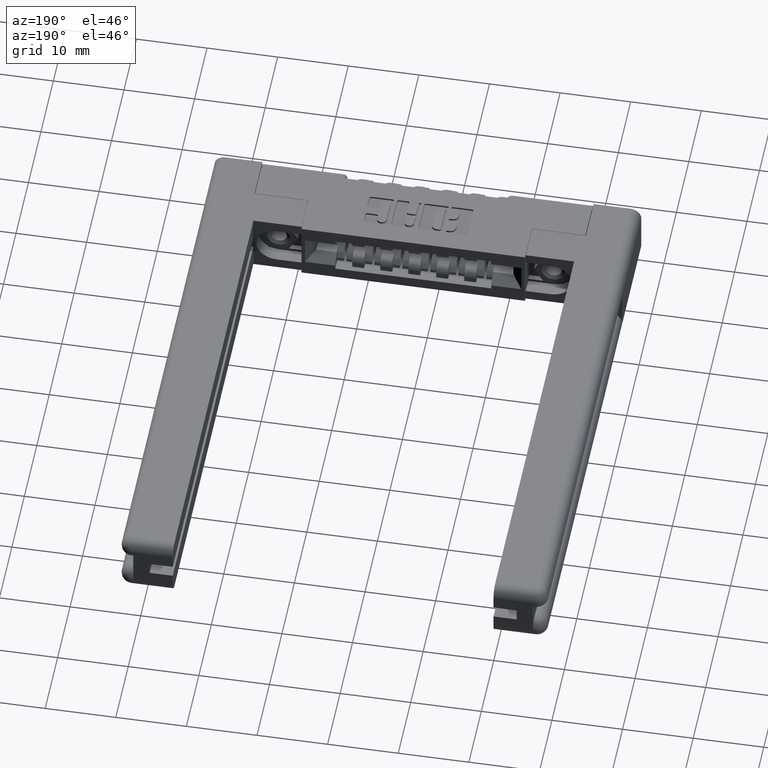
[diagram: clean part render]
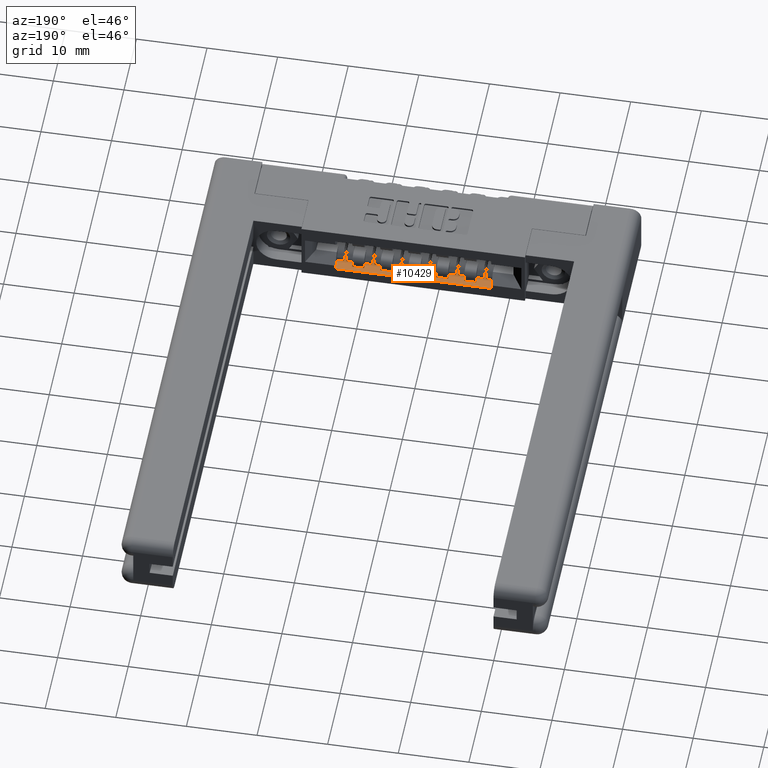
[diagram: same view with one face highlighted and labeled with its STEP entity id]
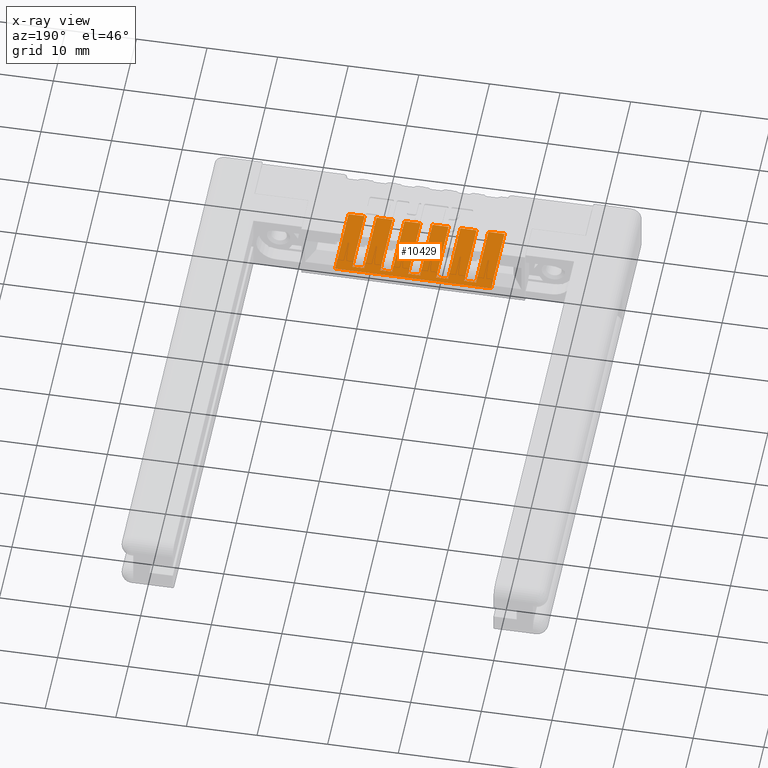
[diagram: x-ray of the same camera — body ghosted, the highlighted face saturated]
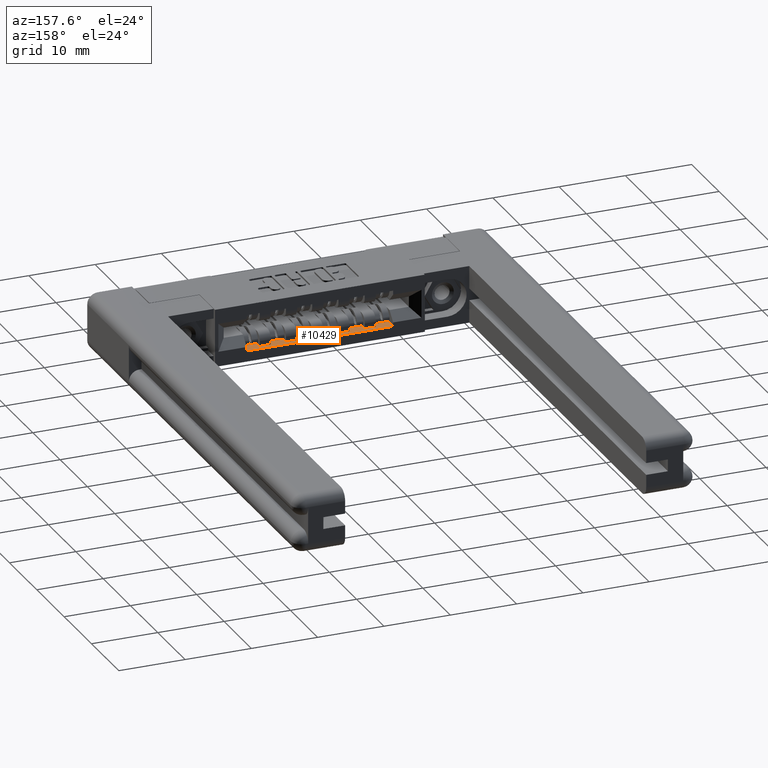
[diagram: same view with one face highlighted and labeled with its STEP entity id]
A machine part, auxiliary view. The second image highlights one B-rep face of the part: STEP entity #10429.
The next image is the same camera in x-ray: the body ghosted, the highlighted face saturated — about 0% of this face is hidden behind the body in this view.
A second angle (auxiliary view) of the same face is appended — the face is thin or edge-on in the first view.
In plain terms, the highlighted planar face has unit normal (0, 0, -1).
Its self-contained STEP definition (entity closure, byte-faithful):
#14 = VECTOR ( 'NONE', #11583, 39.37007874015748100 ) ;
#47 = DIRECTION ( 'NONE',  ( 1.000000000000000000, 0.0000000000000000000, 0.0000000000000000000 ) ) ;
#75 = ORIENTED_EDGE ( 'NONE', *, *, #2605, .F. ) ;
#150 = CARTESIAN_POINT ( 'NONE',  ( 0.7980000000000003800, 0.05099999999999999700, -0.2790000000000001400 ) ) ;
#319 = VERTEX_POINT ( 'NONE', #12393 ) ;
#454 = CARTESIAN_POINT ( 'NONE',  ( 0.9540000000000004000, 0.1160000000000000100, -0.2790000000000001400 ) ) ;
#477 = DIRECTION ( 'NONE',  ( -0.0000000000000000000, 1.000000000000000000, -0.0000000000000000000 ) ) ;
#497 = DIRECTION ( 'NONE',  ( -0.0000000000000000000, 1.000000000000000000, -0.0000000000000000000 ) ) ;
#499 = CARTESIAN_POINT ( 'NONE',  ( 0.5760000000000004000, 0.05099999999999999700, -0.2790000000000001400 ) ) ;
#510 = EDGE_CURVE ( 'NONE', #319, #7394, #1763, .T. ) ;
#556 = CARTESIAN_POINT ( 'NONE',  ( 1.044000000000000500, 0.05099999999999999700, -0.2790000000000000800 ) ) ;
#648 = CARTESIAN_POINT ( 'NONE',  ( 0.4860000000000004300, 0.4729999999999999800, -0.2790000000000001400 ) ) ;
#745 = EDGE_CURVE ( 'NONE', #6218, #8368, #3189, .T. ) ;
#750 = VERTEX_POINT ( 'NONE', #9015 ) ;
#804 = ORIENTED_EDGE ( 'NONE', *, *, #745, .T. ) ;
#819 = LINE ( 'NONE', #454, #7740 ) ;
#963 = CARTESIAN_POINT ( 'NONE',  ( 0.5760000000000004000, 0.1160000000000000100, -0.2790000000000001400 ) ) ;
#979 = AXIS2_PLACEMENT_3D ( 'NONE', #2677, #9711, #1623 ) ;
#992 = EDGE_LOOP ( 'NONE', ( #8621, #9937, #11499, #5476, #75, #1743, #804, #8577, #8813, #1661, #1587, #2906, #12648, #5089, #9270, #8420, #2855, #10586, #4193, #4058, #3812, #7223, #12065, #1453 ) ) ;
#1104 = EDGE_CURVE ( 'NONE', #4184, #11542, #1299, .T. ) ;
#1120 = LINE ( 'NONE', #4703, #11156 ) ;
#1152 = DIRECTION ( 'NONE',  ( -0.0000000000000000000, 1.000000000000000000, -0.0000000000000000000 ) ) ;
#1299 = LINE ( 'NONE', #2588, #5039 ) ;
#1373 = CARTESIAN_POINT ( 'NONE',  ( 1.356000000000000500, 0.4419999999999999500, -0.2790000000000001400 ) ) ;
#1453 = ORIENTED_EDGE ( 'NONE', *, *, #1104, .F. ) ;
#1587 = ORIENTED_EDGE ( 'NONE', *, *, #3536, .T. ) ;
#1588 = LINE ( 'NONE', #11412, #4546 ) ;
#1623 = DIRECTION ( 'NONE',  ( -1.000000000000000000, 0.0000000000000000000, 0.0000000000000000000 ) ) ;
#1652 = CARTESIAN_POINT ( 'NONE',  ( 0.5760000000000004000, 0.05099999999999999700, -0.2790000000000001400 ) ) ;
#1653 = VERTEX_POINT ( 'NONE', #12455 ) ;
#1661 = ORIENTED_EDGE ( 'NONE', *, *, #2114, .T. ) ;
#1743 = ORIENTED_EDGE ( 'NONE', *, *, #5402, .T. ) ;
#1763 = LINE ( 'NONE', #1373, #1915 ) ;
#1837 = LINE ( 'NONE', #12736, #4543 ) ;
#1848 = EDGE_CURVE ( 'NONE', #7394, #6600, #3479, .T. ) ;
#1915 = VECTOR ( 'NONE', #497, 39.37007874015748100 ) ;
#2112 = DIRECTION ( 'NONE',  ( 1.000000000000000000, 0.0000000000000000000, 0.0000000000000000000 ) ) ;
#2114 = EDGE_CURVE ( 'NONE', #2457, #3032, #11461, .T. ) ;
#2457 = VERTEX_POINT ( 'NONE', #5879 ) ;
#2470 = DIRECTION ( 'NONE',  ( -0.0000000000000000000, 1.000000000000000000, -0.0000000000000000000 ) ) ;
#2547 = EDGE_CURVE ( 'NONE', #2457, #12527, #11740, .T. ) ;
#2588 = CARTESIAN_POINT ( 'NONE',  ( 0.4860000000000004300, 0.4419999999999999500, -0.2790000000000001400 ) ) ;
#2605 = EDGE_CURVE ( 'NONE', #750, #6600, #11286, .T. ) ;
#2677 = CARTESIAN_POINT ( 'NONE',  ( 0.5760000000000004000, 0.1160000000000000100, -0.2790000000000001400 ) ) ;
#2679 = DIRECTION ( 'NONE',  ( 1.000000000000000000, 0.0000000000000000000, 0.0000000000000000000 ) ) ;
#2703 = LINE ( 'NONE', #5013, #11786 ) ;
#2855 = ORIENTED_EDGE ( 'NONE', *, *, #9651, .F. ) ;
#2895 = LINE ( 'NONE', #12376, #9195 ) ;
#2906 = ORIENTED_EDGE ( 'NONE', *, *, #7145, .F. ) ;
#3004 = LINE ( 'NONE', #10672, #14 ) ;
#3026 = DIRECTION ( 'NONE',  ( -0.0000000000000000000, 1.000000000000000000, -0.0000000000000000000 ) ) ;
#3032 = VERTEX_POINT ( 'NONE', #9628 ) ;
#3189 = LINE ( 'NONE', #963, #8230 ) ;
#3220 = CARTESIAN_POINT ( 'NONE',  ( 1.356000000000000500, 0.4729999999999999800, -0.2790000000000001400 ) ) ;
#3479 = LINE ( 'NONE', #11022, #6912 ) ;
#3536 = EDGE_CURVE ( 'NONE', #3032, #7096, #7040, .T. ) ;
#3607 = EDGE_CURVE ( 'NONE', #9878, #4633, #9093, .T. ) ;
#3752 = CARTESIAN_POINT ( 'NONE',  ( 0.5760000000000004000, 0.4419999999999999500, -0.2790000000000001400 ) ) ;
#3812 = ORIENTED_EDGE ( 'NONE', *, *, #8284, .F. ) ;
#3825 = EDGE_CURVE ( 'NONE', #4633, #11542, #10344, .T. ) ;
#3940 = DIRECTION ( 'NONE',  ( -0.0000000000000000000, 1.000000000000000000, -0.0000000000000000000 ) ) ;
#4058 = ORIENTED_EDGE ( 'NONE', *, *, #12698, .F. ) ;
#4068 = CARTESIAN_POINT ( 'NONE',  ( 1.200000000000000400, 0.1160000000000000100, -0.2790000000000001400 ) ) ;
#4099 = CARTESIAN_POINT ( 'NONE',  ( 0.7980000000000003800, 0.4419999999999999500, -0.2790000000000001400 ) ) ;
#4184 = VERTEX_POINT ( 'NONE', #10856 ) ;
#4193 = ORIENTED_EDGE ( 'NONE', *, *, #11112, .T. ) ;
#4499 = EDGE_CURVE ( 'NONE', #9536, #6203, #10927, .T. ) ;
#4543 = VECTOR ( 'NONE', #12689, 39.37007874015748100 ) ;
#4546 = VECTOR ( 'NONE', #9479, 39.37007874015748100 ) ;
#4583 = EDGE_CURVE ( 'NONE', #9536, #8718, #1588, .T. ) ;
#4633 = VERTEX_POINT ( 'NONE', #5376 ) ;
#4703 = CARTESIAN_POINT ( 'NONE',  ( 0.5760000000000004000, 0.05099999999999999700, -0.2790000000000001400 ) ) ;
#4718 = FACE_OUTER_BOUND ( 'NONE', #992, .T. ) ;
#4772 = LINE ( 'NONE', #6497, #11373 ) ;
#4837 = VECTOR ( 'NONE', #5486, 39.37007874015748100 ) ;
#4963 = DIRECTION ( 'NONE',  ( -1.000000000000000000, 0.0000000000000000000, 0.0000000000000000000 ) ) ;
#4967 = EDGE_CURVE ( 'NONE', #6203, #5735, #12233, .T. ) ;
#4974 = VERTEX_POINT ( 'NONE', #8059 ) ;
#5004 = VECTOR ( 'NONE', #1152, 39.37007874015748100 ) ;
#5013 = CARTESIAN_POINT ( 'NONE',  ( 1.044000000000000500, 0.1160000000000000100, -0.2790000000000001400 ) ) ;
#5039 = VECTOR ( 'NONE', #5478, 39.37007874015748100 ) ;
#5082 = DIRECTION ( 'NONE',  ( -0.0000000000000000000, 1.000000000000000000, -0.0000000000000000000 ) ) ;
#5089 = ORIENTED_EDGE ( 'NONE', *, *, #4499, .T. ) ;
#5117 = DIRECTION ( 'NONE',  ( -0.0000000000000000000, 1.000000000000000000, -0.0000000000000000000 ) ) ;
#5325 = VECTOR ( 'NONE', #12172, 39.37007874015748100 ) ;
#5376 = CARTESIAN_POINT ( 'NONE',  ( 1.200000000000000400, 0.05099999999999999700, -0.2790000000000000800 ) ) ;
#5393 = DIRECTION ( 'NONE',  ( 1.000000000000000000, 0.0000000000000000000, 0.0000000000000000000 ) ) ;
#5402 = EDGE_CURVE ( 'NONE', #750, #6218, #1837, .T. ) ;
#5476 = ORIENTED_EDGE ( 'NONE', *, *, #1848, .T. ) ;
#5478 = DIRECTION ( 'NONE',  ( -1.000000000000000000, -0.0000000000000000000, -0.0000000000000000000 ) ) ;
#5486 = DIRECTION ( 'NONE',  ( -0.0000000000000000000, 1.000000000000000000, -0.0000000000000000000 ) ) ;
#5718 = CARTESIAN_POINT ( 'NONE',  ( 1.110000000000000500, 0.05099999999999999700, -0.2790000000000001400 ) ) ;
#5735 = VERTEX_POINT ( 'NONE', #12144 ) ;
#5879 = CARTESIAN_POINT ( 'NONE',  ( 0.6420000000000004600, 0.05099999999999999700, -0.2790000000000001400 ) ) ;
#5893 = EDGE_CURVE ( 'NONE', #1653, #5735, #12060, .T. ) ;
#5935 = VECTOR ( 'NONE', #5117, 39.37007874015748100 ) ;
#5947 = VECTOR ( 'NONE', #3026, 39.37007874015748100 ) ;
#5986 = VERTEX_POINT ( 'NONE', #9886 ) ;
#6203 = VERTEX_POINT ( 'NONE', #10946 ) ;
#6218 = VERTEX_POINT ( 'NONE', #9011 ) ;
#6255 = CARTESIAN_POINT ( 'NONE',  ( 0.5760000000000004000, 0.05099999999999999700, -0.2790000000000001400 ) ) ;
#6421 = DIRECTION ( 'NONE',  ( 1.000000000000000000, 0.0000000000000000000, 0.0000000000000000000 ) ) ;
#6477 = CARTESIAN_POINT ( 'NONE',  ( 0.7320000000000004300, 0.4419999999999999500, -0.2790000000000001400 ) ) ;
#6497 = CARTESIAN_POINT ( 'NONE',  ( 1.110000000000000500, 0.1160000000000000100, -0.2790000000000001400 ) ) ;
#6592 = LINE ( 'NONE', #10160, #5325 ) ;
#6600 = VERTEX_POINT ( 'NONE', #648 ) ;
#6621 = DIRECTION ( 'NONE',  ( -1.000000000000000000, -0.0000000000000000000, -0.0000000000000000000 ) ) ;
#6637 = CARTESIAN_POINT ( 'NONE',  ( 0.7320000000000004300, 0.1160000000000000100, -0.2790000000000001400 ) ) ;
#6667 = VERTEX_POINT ( 'NONE', #6828 ) ;
#6828 = CARTESIAN_POINT ( 'NONE',  ( 1.044000000000000500, 0.4419999999999999500, -0.2790000000000001400 ) ) ;
#6912 = VECTOR ( 'NONE', #4963, 39.37007874015748100 ) ;
#7040 = LINE ( 'NONE', #6637, #4837 ) ;
#7096 = VERTEX_POINT ( 'NONE', #6477 ) ;
#7145 = EDGE_CURVE ( 'NONE', #8718, #7096, #10007, .T. ) ;
#7153 = CARTESIAN_POINT ( 'NONE',  ( 0.6420000000000004600, 0.1160000000000000100, -0.2790000000000001400 ) ) ;
#7223 = ORIENTED_EDGE ( 'NONE', *, *, #3607, .T. ) ;
#7394 = VERTEX_POINT ( 'NONE', #3220 ) ;
#7740 = VECTOR ( 'NONE', #2470, 39.37007874015748100 ) ;
#7831 = DIRECTION ( 'NONE',  ( -1.000000000000000000, -0.0000000000000000000, -0.0000000000000000000 ) ) ;
#7841 = VECTOR ( 'NONE', #2679, 39.37007874015748100 ) ;
#7978 = DIRECTION ( 'NONE',  ( -0.0000000000000000000, 1.000000000000000000, -0.0000000000000000000 ) ) ;
#8059 = CARTESIAN_POINT ( 'NONE',  ( 1.266000000000000500, 0.05099999999999999700, -0.2790000000000001400 ) ) ;
#8150 = EDGE_CURVE ( 'NONE', #9194, #12255, #2895, .T. ) ;
#8230 = VECTOR ( 'NONE', #3940, 39.37007874015748100 ) ;
#8231 = LINE ( 'NONE', #11804, #11498 ) ;
#8284 = EDGE_CURVE ( 'NONE', #9878, #5986, #4772, .T. ) ;
#8368 = VERTEX_POINT ( 'NONE', #3752 ) ;
#8420 = ORIENTED_EDGE ( 'NONE', *, *, #5893, .F. ) ;
#8577 = ORIENTED_EDGE ( 'NONE', *, *, #9200, .F. ) ;
#8605 = VECTOR ( 'NONE', #2112, 39.37007874015748100 ) ;
#8621 = ORIENTED_EDGE ( 'NONE', *, *, #11506, .F. ) ;
#8718 = VERTEX_POINT ( 'NONE', #4099 ) ;
#8813 = ORIENTED_EDGE ( 'NONE', *, *, #2547, .F. ) ;
#8819 = VECTOR ( 'NONE', #6421, 39.37007874015748100 ) ;
#9011 = CARTESIAN_POINT ( 'NONE',  ( 0.5760000000000004000, 0.05099999999999999700, -0.2790000000000000800 ) ) ;
#9015 = CARTESIAN_POINT ( 'NONE',  ( 0.4860000000000004300, 0.05099999999999999700, -0.2790000000000001400 ) ) ;
#9093 = LINE ( 'NONE', #1652, #7841 ) ;
#9194 = VERTEX_POINT ( 'NONE', #9567 ) ;
#9195 = VECTOR ( 'NONE', #5393, 39.37007874015748100 ) ;
#9200 = EDGE_CURVE ( 'NONE', #12527, #8368, #8231, .T. ) ;
#9270 = ORIENTED_EDGE ( 'NONE', *, *, #4967, .T. ) ;
#9385 = VECTOR ( 'NONE', #7831, 39.37007874015748100 ) ;
#9479 = DIRECTION ( 'NONE',  ( -0.0000000000000000000, 1.000000000000000000, -0.0000000000000000000 ) ) ;
#9536 = VERTEX_POINT ( 'NONE', #150 ) ;
#9567 = CARTESIAN_POINT ( 'NONE',  ( 0.9540000000000004000, 0.05099999999999999700, -0.2790000000000001400 ) ) ;
#9628 = CARTESIAN_POINT ( 'NONE',  ( 0.7320000000000004300, 0.05099999999999999700, -0.2790000000000000800 ) ) ;
#9649 = CARTESIAN_POINT ( 'NONE',  ( 1.200000000000000400, 0.4419999999999999500, -0.2790000000000001400 ) ) ;
#9651 = EDGE_CURVE ( 'NONE', #9194, #1653, #819, .T. ) ;
#9711 = DIRECTION ( 'NONE',  ( -0.0000000000000000000, 0.0000000000000000000, -1.000000000000000000 ) ) ;
#9878 = VERTEX_POINT ( 'NONE', #5718 ) ;
#9886 = CARTESIAN_POINT ( 'NONE',  ( 1.110000000000000500, 0.4419999999999999500, -0.2790000000000001400 ) ) ;
#9937 = ORIENTED_EDGE ( 'NONE', *, *, #11762, .T. ) ;
#10007 = LINE ( 'NONE', #12918, #9385 ) ;
#10049 = VECTOR ( 'NONE', #5082, 39.37007874015748100 ) ;
#10160 = CARTESIAN_POINT ( 'NONE',  ( 0.4860000000000004300, 0.4419999999999999500, -0.2790000000000001400 ) ) ;
#10344 = LINE ( 'NONE', #4068, #5935 ) ;
#10429 = ADVANCED_FACE ( 'NONE', ( #4718 ), #11729, .F. ) ;
#10586 = ORIENTED_EDGE ( 'NONE', *, *, #8150, .T. ) ;
#10672 = CARTESIAN_POINT ( 'NONE',  ( 1.266000000000000500, 0.1160000000000000100, -0.2790000000000001400 ) ) ;
#10856 = CARTESIAN_POINT ( 'NONE',  ( 1.266000000000000500, 0.4419999999999999500, -0.2790000000000001400 ) ) ;
#10927 = LINE ( 'NONE', #6255, #8605 ) ;
#10946 = CARTESIAN_POINT ( 'NONE',  ( 0.8880000000000004600, 0.05099999999999999700, -0.2790000000000000800 ) ) ;
#11022 = CARTESIAN_POINT ( 'NONE',  ( 0.5760000000000004000, 0.4729999999999999800, -0.2790000000000001400 ) ) ;
#11112 = EDGE_CURVE ( 'NONE', #12255, #6667, #2703, .T. ) ;
#11156 = VECTOR ( 'NONE', #47, 39.37007874015748100 ) ;
#11283 = VECTOR ( 'NONE', #6621, 39.37007874015748100 ) ;
#11286 = LINE ( 'NONE', #11962, #5947 ) ;
#11373 = VECTOR ( 'NONE', #477, 39.37007874015748100 ) ;
#11412 = CARTESIAN_POINT ( 'NONE',  ( 0.7980000000000003800, 0.1160000000000000100, -0.2790000000000001400 ) ) ;
#11461 = LINE ( 'NONE', #499, #8819 ) ;
#11498 = VECTOR ( 'NONE', #11715, 39.37007874015748100 ) ;
#11499 = ORIENTED_EDGE ( 'NONE', *, *, #510, .T. ) ;
#11506 = EDGE_CURVE ( 'NONE', #4974, #4184, #3004, .T. ) ;
#11542 = VERTEX_POINT ( 'NONE', #9649 ) ;
#11583 = DIRECTION ( 'NONE',  ( -0.0000000000000000000, 1.000000000000000000, -0.0000000000000000000 ) ) ;
#11715 = DIRECTION ( 'NONE',  ( -1.000000000000000000, -0.0000000000000000000, -0.0000000000000000000 ) ) ;
#11729 = PLANE ( 'NONE',  #979 ) ;
#11740 = LINE ( 'NONE', #7153, #10049 ) ;
#11762 = EDGE_CURVE ( 'NONE', #4974, #319, #1120, .T. ) ;
#11786 = VECTOR ( 'NONE', #7978, 39.37007874015748100 ) ;
#11804 = CARTESIAN_POINT ( 'NONE',  ( 0.4860000000000004300, 0.4419999999999999500, -0.2790000000000001400 ) ) ;
#11924 = CARTESIAN_POINT ( 'NONE',  ( 0.8880000000000004600, 0.1160000000000000100, -0.2790000000000001400 ) ) ;
#11962 = CARTESIAN_POINT ( 'NONE',  ( 0.4860000000000004300, 0.1160000000000000100, -0.2790000000000001400 ) ) ;
#12029 = CARTESIAN_POINT ( 'NONE',  ( 0.6420000000000004600, 0.4419999999999999500, -0.2790000000000001400 ) ) ;
#12060 = LINE ( 'NONE', #12500, #11283 ) ;
#12065 = ORIENTED_EDGE ( 'NONE', *, *, #3825, .T. ) ;
#12144 = CARTESIAN_POINT ( 'NONE',  ( 0.8880000000000004600, 0.4419999999999999500, -0.2790000000000001400 ) ) ;
#12172 = DIRECTION ( 'NONE',  ( -1.000000000000000000, -0.0000000000000000000, -0.0000000000000000000 ) ) ;
#12233 = LINE ( 'NONE', #11924, #5004 ) ;
#12255 = VERTEX_POINT ( 'NONE', #556 ) ;
#12376 = CARTESIAN_POINT ( 'NONE',  ( 0.5760000000000004000, 0.05099999999999999700, -0.2790000000000001400 ) ) ;
#12393 = CARTESIAN_POINT ( 'NONE',  ( 1.356000000000000500, 0.05100000000000001800, -0.2790000000000001400 ) ) ;
#12455 = CARTESIAN_POINT ( 'NONE',  ( 0.9540000000000004000, 0.4419999999999999500, -0.2790000000000001400 ) ) ;
#12500 = CARTESIAN_POINT ( 'NONE',  ( 0.4860000000000004300, 0.4419999999999999500, -0.2790000000000001400 ) ) ;
#12527 = VERTEX_POINT ( 'NONE', #12029 ) ;
#12648 = ORIENTED_EDGE ( 'NONE', *, *, #4583, .F. ) ;
#12689 = DIRECTION ( 'NONE',  ( 1.000000000000000000, 0.0000000000000000000, 0.0000000000000000000 ) ) ;
#12698 = EDGE_CURVE ( 'NONE', #5986, #6667, #6592, .T. ) ;
#12736 = CARTESIAN_POINT ( 'NONE',  ( 0.5760000000000004000, 0.05099999999999999700, -0.2790000000000001400 ) ) ;
#12918 = CARTESIAN_POINT ( 'NONE',  ( 0.4860000000000004300, 0.4419999999999999500, -0.2790000000000001400 ) ) ;